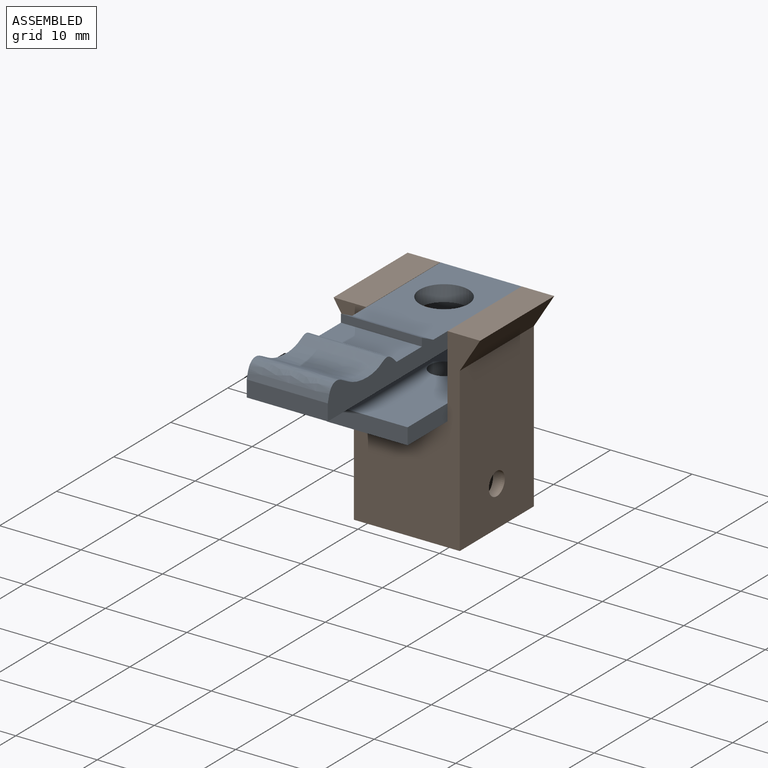
[diagram: assembled view]
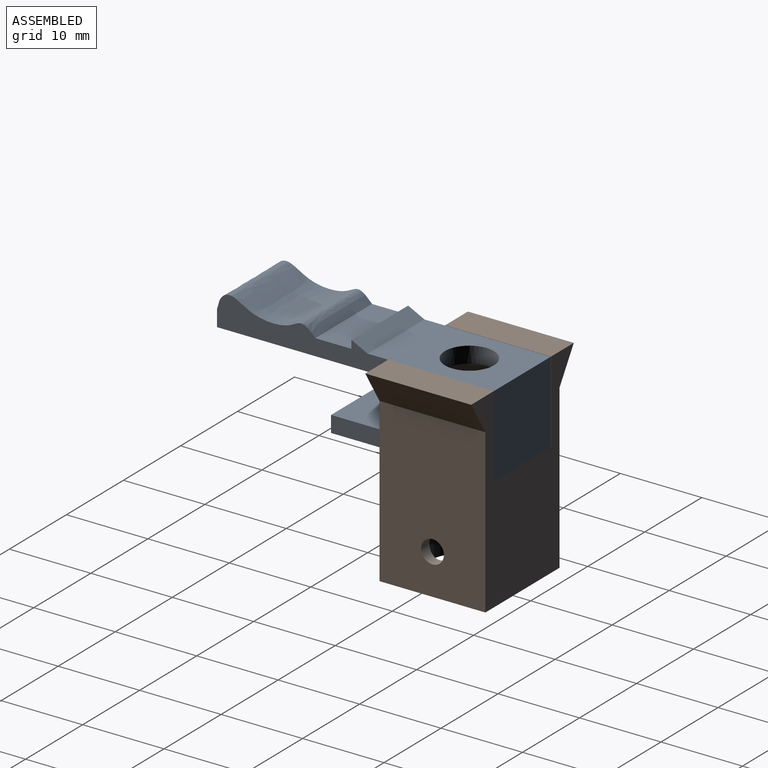
[diagram: assembled view, second angle]
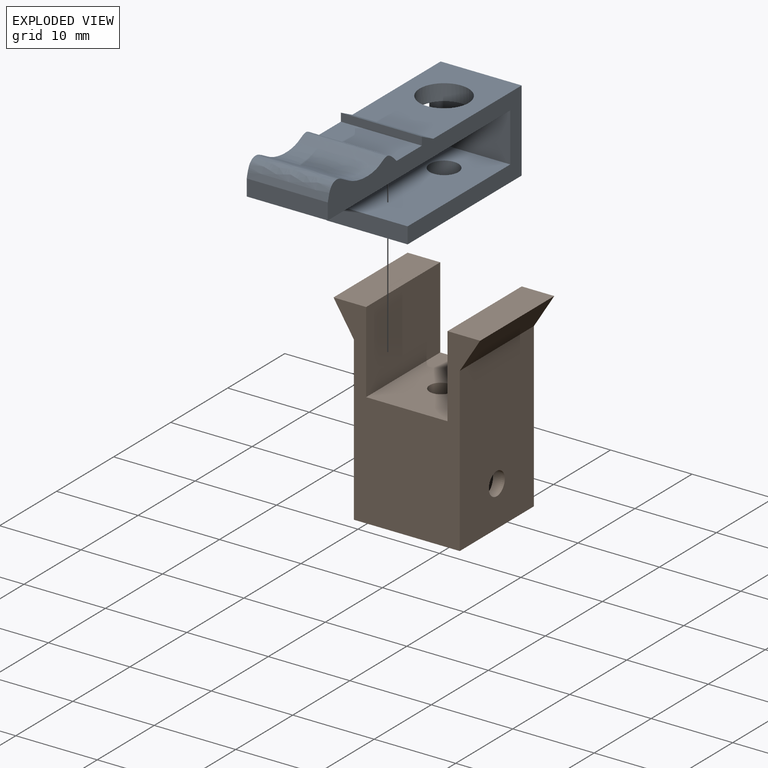
[diagram: exploded view]
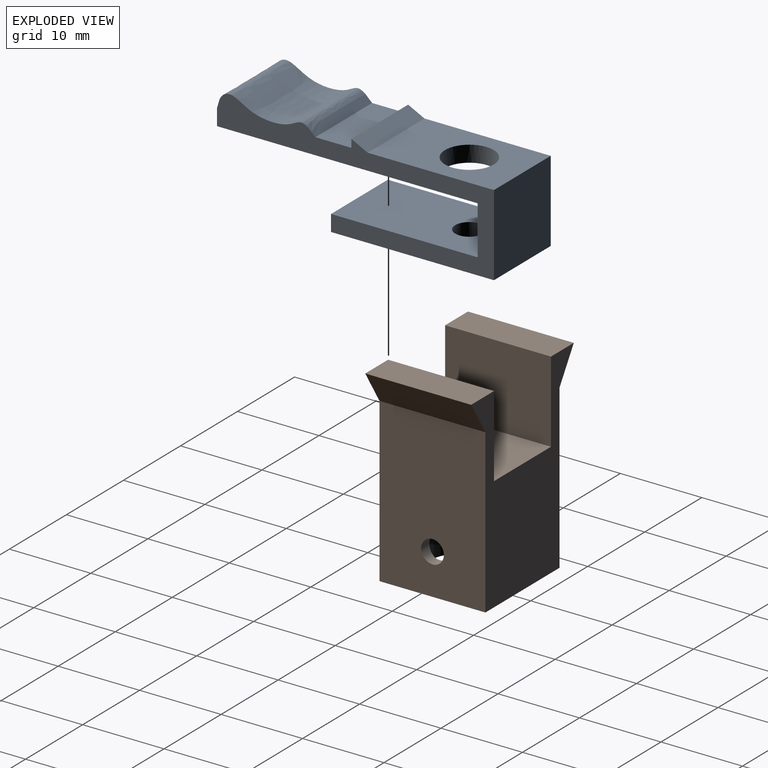
[diagram: exploded view, second angle]
ASSEMBLY  parts=2 mates=3
PART A: 16 faces, bbox 10x34x12 mm
  f0: plane 9.95x2mm, normal (0,-1,0), area 19.9mm2, adj f1,f10,f11,f12
  f1: plane 20x9.95mm, normal (0,0,-1), area 189.4mm2, adj f0,f2,f11,f12,f13
  f2: plane 10x9.95mm, normal (0,1,0), area 99.5mm2, adj f1,f3,f11,f12
  f3: plane 15.5x9.95mm, normal (0,0,1), area 126mm2, adj f2,f4,f11,f12,f14
  f4: plane 9.95x2mm, normal (0,0.45,0.89), area 22.2mm2, adj f3,f5,f11,f12
  f5: plane 9.95x1mm, normal (0,-1,0), area 9.9mm2, adj f4,f6,f11,f12
  f6: plane 9.95x4.43mm, normal (0,0,1), area 44.1mm2, adj f5,f11,f12,f15
  f7: plane 9.95x2mm, normal (0,-1,0), area 19.9mm2, adj f8,f11,f12,f15
  f8: plane 32x9.95mm, normal (0,0,-1), area 290.1mm2, adj f7,f9,f11,f12,f14
  f9: plane 9.95x6mm, normal (0,-1,0), area 59.7mm2, adj f8,f10,f11,f12
  f10: plane 18x9.95mm, normal (0,0,1), area 169.5mm2, adj f0,f9,f11,f12,f13
  f11: plane 34x12.03mm, normal (1,0,0), area 131.6mm2, adj f0,f1,f2,f3,f4,f5,f6,f7
  f12: plane 34x12.03mm, normal (-1,0,0), area 131.6mm2, adj f0,f1,f2,f3,f4,f5,f6,f7
  f13: cylinder r=1.75mm len=3.5mm, axis (0,0,1), area 22mm2, adj f1,f10
  f14: cylinder r=3mm len=6mm, axis (0,0,1), area 37.7mm2, adj f3,f8
  f15: extruded ~12.07x9.95mm, area 140.9mm2, adj f6,f7,f11,f12
PART B: 17 faces, bbox 18x13x24 mm
  f0: cylinder r=1.4mm len=4mm, axis (0,0,1), area 35.2mm2, adj f12,f13
  f1: plane 13x4mm, normal (0,0,1), area 52mm2, adj f2,f3,f7,f10
  f2: plane 24x18mm, normal (0,1,0), area 222mm2, adj f1,f4,f5,f6,f7,f8,f9,f10
  f3: plane 24x18mm, normal (0,-1,0), area 222mm2, adj f1,f4,f5,f6,f7,f8,f9,f10
  f4: plane 20x13mm, normal (1,0,0), area 253.8mm2, adj f2,f3,f6,f7,f15
  f5: plane 20x13mm, normal (-1,0,0), area 253.8mm2, adj f2,f3,f6,f9,f16
  f6: plane 13x13mm, normal (0,0,-1), area 82.4mm2, adj f2,f3,f4,f5,f14
  f7: plane 13x4mm, normal (0.85,0,-0.53), area 61.3mm2, adj f1,f2,f3,f4
  f8: plane 13x4mm, normal (0,0,1), area 52mm2, adj f2,f3,f9,f11
  f9: plane 13x4mm, normal (-0.85,0,-0.53), area 61.3mm2, adj f2,f3,f5,f8
  f10: plane 13x10mm, normal (-1,0,0), area 130mm2, adj f1,f2,f3,f12
  f11: plane 13x10mm, normal (1,0,0), area 130mm2, adj f2,f3,f8,f12
  f12: plane 13x10mm, normal (0,0,1), area 123.8mm2, adj f0,f2,f3,f10,f11
  f13: plane 10.5x10.5mm, normal (0,0,-1), area 80.4mm2, adj f0,f14
  f14: cylinder r=5.25mm len=10.5mm, axis (0,0,-1), area 317.4mm2, adj f6,f13,f15,f16
  f15: cylinder r=1.4mm len=2.8mm, axis (-1,0,0), area 11.8mm2, adj f4,f14
  f16: cylinder r=1.4mm len=2.8mm, axis (-1,0,0), area 11.8mm2, adj f5,f14
PLACE A t=(0.03,-7,4.67)mm
PLACE B t=(0,6.5,-9.33)mm
MATE planar A.f1 <-> B.f12  axis (0,0,-1) through (0.03,-7,4.67)mm
MATE planar A.f2 <-> B.f2  axis (0,1,0) through (0.03,13,9.67)mm
MATE planar A.f11 <-> B.f10  axis (1,0,0) through (5,2,6.67)mm
